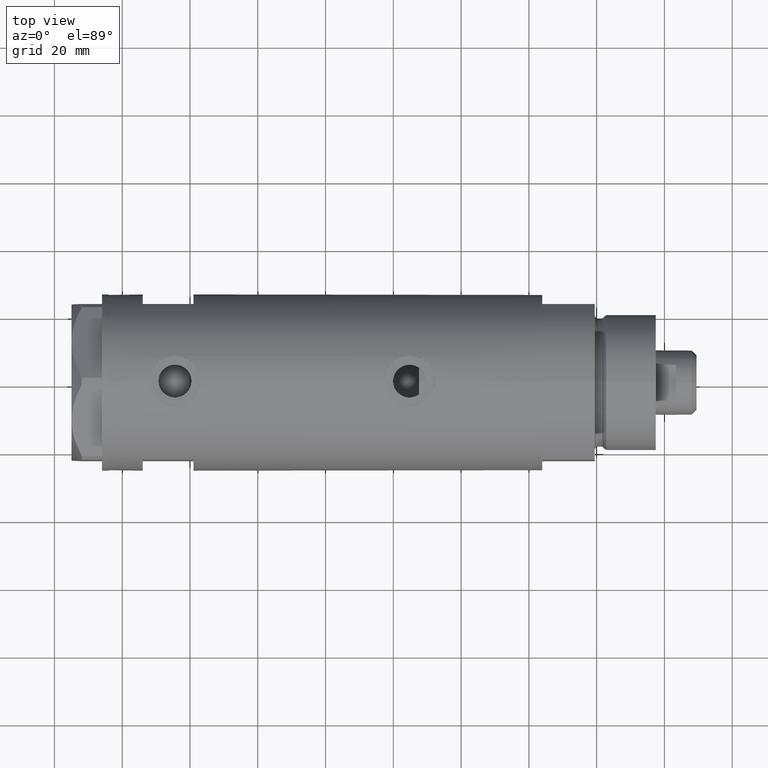
[diagram: clean part render]
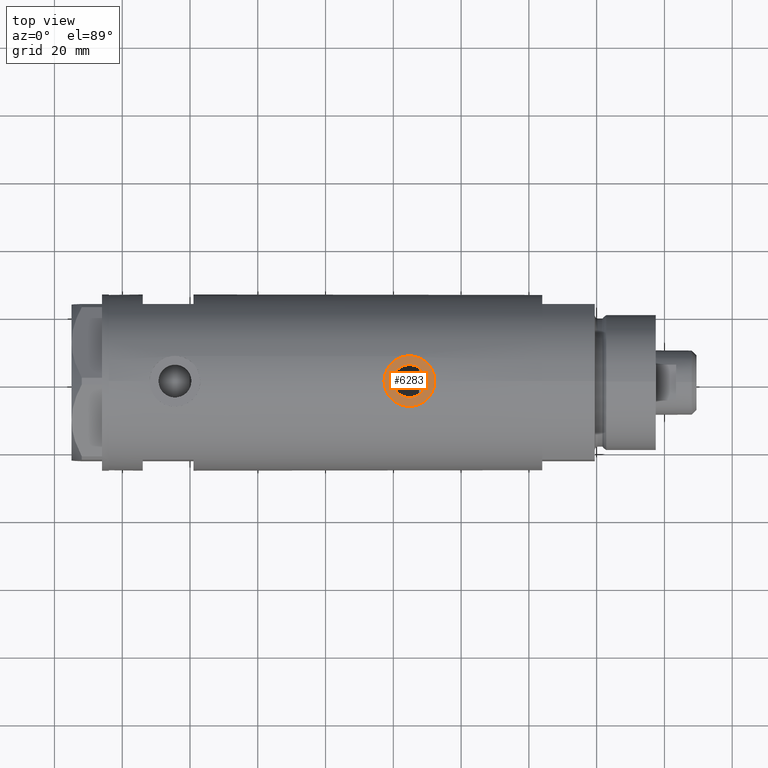
[diagram: same view with one face highlighted and labeled with its STEP entity id]
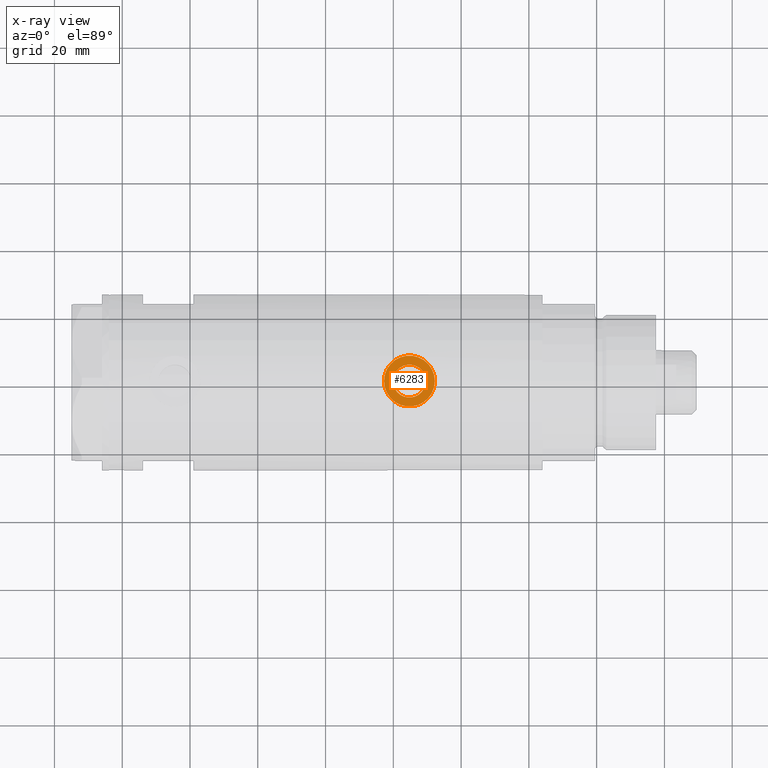
[diagram: x-ray of the same camera — body ghosted, the highlighted face saturated]
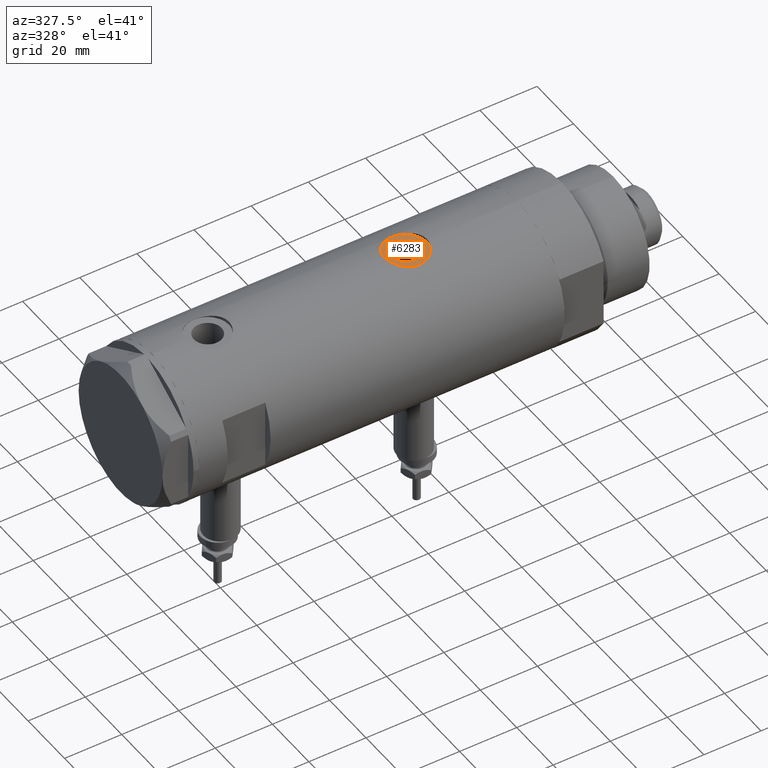
[diagram: same view with one face highlighted and labeled with its STEP entity id]
A machine part, top view. The second image highlights one B-rep face of the part: STEP entity #6283.
The next image is the same camera in x-ray: the body ghosted, the highlighted face saturated — about 0% of this face is hidden behind the body in this view.
A second angle (auxiliary view) of the same face is appended — the face is thin or edge-on in the first view.
In plain terms, the highlighted planar face has unit normal (0, 0, 1).
Its self-contained STEP definition (entity closure, byte-faithful):
#37 = CARTESIAN_POINT ( 'NONE',  ( 24.80000000000000426, 0.000000000000000000, -24.75000000000000000 ) ) ;
#64 = CARTESIAN_POINT ( 'NONE',  ( 24.80000000000000426, 0.000000000000000000, -24.75000000000000000 ) ) ;
#149 = CARTESIAN_POINT ( 'NONE',  ( 24.80000000000000426, 9.184850993605147944E-16, -17.25000000000000000 ) ) ;
#253 = CIRCLE ( 'NONE', #3000, 4.865000000000001101 ) ;
#399 = EDGE_LOOP ( 'NONE', ( #4591, #4429 ) ) ;
#747 = VERTEX_POINT ( 'NONE', #3629 ) ;
#924 = FACE_OUTER_BOUND ( 'NONE', #399, .T. ) ;
#987 = PLANE ( 'NONE',  #2406 ) ;
#1029 = EDGE_CURVE ( 'NONE', #4551, #5153, #1330, .T. ) ;
#1330 = CIRCLE ( 'NONE', #6236, 7.500000000000000000 ) ;
#1567 = DIRECTION ( 'NONE',  ( 1.000000000000000000, 0.000000000000000000, 0.000000000000000000 ) ) ;
#1642 = CARTESIAN_POINT ( 'NONE',  ( 24.80000000000000426, 0.000000000000000000, -24.75000000000000000 ) ) ;
#1696 = ORIENTED_EDGE ( 'NONE', *, *, #5776, .F. ) ;
#1753 = CIRCLE ( 'NONE', #5848, 7.500000000000000000 ) ;
#1944 = VERTEX_POINT ( 'NONE', #3254 ) ;
#1950 = DIRECTION ( 'NONE',  ( 1.000000000000000000, 0.000000000000000000, 0.000000000000000000 ) ) ;
#2406 = AXIS2_PLACEMENT_3D ( 'NONE', #2869, #4414, #2458 ) ;
#2458 = DIRECTION ( 'NONE',  ( 0.000000000000000000, 0.000000000000000000, -1.000000000000000000 ) ) ;
#2864 = DIRECTION ( 'NONE',  ( 1.000000000000000000, 0.000000000000000000, 0.000000000000000000 ) ) ;
#2869 = CARTESIAN_POINT ( 'NONE',  ( 24.80000000000000426, 0.000000000000000000, -24.75000000000000000 ) ) ;
#2974 = EDGE_CURVE ( 'NONE', #5153, #4551, #1753, .T. ) ;
#3000 = AXIS2_PLACEMENT_3D ( 'NONE', #64, #1567, #5026 ) ;
#3254 = CARTESIAN_POINT ( 'NONE',  ( 24.80000000000000426, 5.957906677851871624E-16, -19.88500000000000156 ) ) ;
#3595 = DIRECTION ( 'NONE',  ( 1.000000000000000000, 0.000000000000000000, 0.000000000000000000 ) ) ;
#3629 = CARTESIAN_POINT ( 'NONE',  ( 24.80000000000000426, 0.000000000000000000, -29.61500000000000199 ) ) ;
#3838 = ORIENTED_EDGE ( 'NONE', *, *, #6008, .F. ) ;
#3898 = DIRECTION ( 'NONE',  ( 0.000000000000000000, 0.000000000000000000, -1.000000000000000000 ) ) ;
#3937 = CARTESIAN_POINT ( 'NONE',  ( 24.80000000000000426, 0.000000000000000000, -32.25000000000000000 ) ) ;
#4414 = DIRECTION ( 'NONE',  ( 1.000000000000000000, 0.000000000000000000, 0.000000000000000000 ) ) ;
#4429 = ORIENTED_EDGE ( 'NONE', *, *, #1029, .T. ) ;
#4551 = VERTEX_POINT ( 'NONE', #149 ) ;
#4591 = ORIENTED_EDGE ( 'NONE', *, *, #2974, .T. ) ;
#4712 = EDGE_LOOP ( 'NONE', ( #3838, #1696 ) ) ;
#4761 = AXIS2_PLACEMENT_3D ( 'NONE', #1642, #3595, #5549 ) ;
#5026 = DIRECTION ( 'NONE',  ( 0.000000000000000000, 0.000000000000000000, -1.000000000000000000 ) ) ;
#5153 = VERTEX_POINT ( 'NONE', #3937 ) ;
#5549 = DIRECTION ( 'NONE',  ( 0.000000000000000000, 0.000000000000000000, -1.000000000000000000 ) ) ;
#5569 = CIRCLE ( 'NONE', #4761, 4.865000000000001101 ) ;
#5776 = EDGE_CURVE ( 'NONE', #1944, #747, #5569, .T. ) ;
#5821 = FACE_BOUND ( 'NONE', #4712, .T. ) ;
#5848 = AXIS2_PLACEMENT_3D ( 'NONE', #6321, #2864, #3898 ) ;
#5863 = DIRECTION ( 'NONE',  ( 0.000000000000000000, 0.000000000000000000, -1.000000000000000000 ) ) ;
#6008 = EDGE_CURVE ( 'NONE', #747, #1944, #253, .T. ) ;
#6236 = AXIS2_PLACEMENT_3D ( 'NONE', #37, #1950, #5863 ) ;
#6283 = ADVANCED_FACE ( 'NONE', ( #5821, #924 ), #987, .T. ) ;
#6321 = CARTESIAN_POINT ( 'NONE',  ( 24.80000000000000426, 0.000000000000000000, -24.75000000000000000 ) ) ;